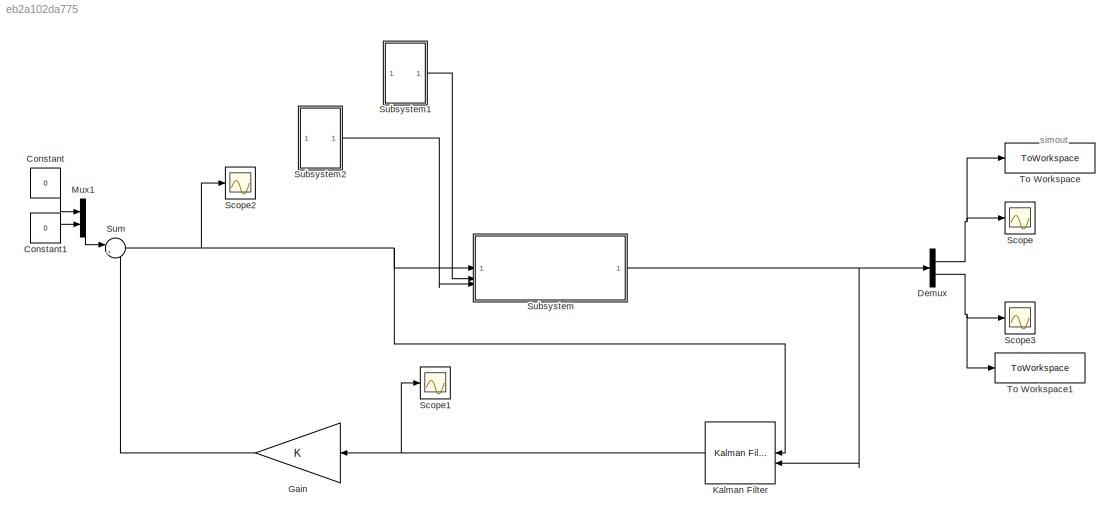
MODEL slx_eb2a102da775
KIND model
CONFIG AbsTol = auto
CONFIG EnableMultiTasking = off
CONFIG FixedStep = auto
CONFIG MaxStep = auto
CONFIG MinStep = auto
CONFIG RelTol = 1e-3
CONFIG SampleTimeConstraint = Unconstrained
CONFIG SolverName = VariableStepAuto
CONFIG StartTime = 0.0
CONFIG StopTime = 60
BLOCK [Constant] Constant
  Value = 0
BLOCK [Constant] Constant1
  Value = 0
BLOCK [Demux] Demux
  Outputs = 2
BLOCK [Gain] Gain
  Gain = K
  Multiplication = Matrix(K*u)
  NameLocation = top
BLOCK [Reference] Kalman Filter  REF=ctrlSharedLib/Kalman Filter
  LibrarySourceBlock = cstblocks/State Estimation/Kalman Filter
  NameLocation = top
  SourceBlock = ctrlSharedLib/Kalman Filter
  SourceType = ctrlKalmanFilter
BLOCK [Mux] Mux1
  DisplayOption = bar
  Inputs = 2
BLOCK [Scope] Scope
  Floating = off
  NumInputPorts = 1
  ScopeSpecificationString = Simulink.scopes.TimeScopeBlockCfg('CurrentConfiguration', extmgr.ConfigurationSet(extmgr.Configuration('Core','General UI',true),extmgr.Configuration('Core','Source UI',true),extmgr.Configuration('Sources','WiredSimulink',true),extmgr.Configuration('Visuals','Time Domain',true,'SerializedDisplays',{struct('MinYLimReal','-0.42464','MaxYLimReal','0.43449','YLabelReal','','MinYLimMag','0.00000','MaxY...<+1433ch>
BLOCK [Scope] Scope1
  Floating = off
  NumInputPorts = 1
  ScopeSpecificationString = Simulink.scopes.TimeScopeBlockCfg('CurrentConfiguration', extmgr.ConfigurationSet(extmgr.Configuration('Core','General UI',true),extmgr.Configuration('Core','Source UI',true),extmgr.Configuration('Sources','WiredSimulink',true,'DataLoggingVariableName','ScopeData1'),extmgr.Configuration('Visuals','Time Domain',true,'SerializedDisplays',{struct('MinYLimReal','-14.36399','MaxYLimReal','13.40943','YL...<+1488ch>
BLOCK [Scope] Scope2
  Floating = off
  NumInputPorts = 1
  ScopeSpecificationString = Simulink.scopes.TimeScopeBlockCfg('CurrentConfiguration', extmgr.ConfigurationSet(extmgr.Configuration('Core','General UI',true),extmgr.Configuration('Core','Source UI',true),extmgr.Configuration('Sources','WiredSimulink',true,'DataLoggingVariableName','ScopeData2'),extmgr.Configuration('Visuals','Time Domain',true,'SerializedDisplays',{struct('MinYLimReal','-2530.75244','MaxYLimReal','2680.49767'...<+1464ch>
BLOCK [Scope] Scope3
  Floating = off
  NumInputPorts = 1
  ScopeSpecificationString = Simulink.scopes.TimeScopeBlockCfg('CurrentConfiguration', extmgr.ConfigurationSet(extmgr.Configuration('Core','General UI',true),extmgr.Configuration('Core','Source UI',true),extmgr.Configuration('Sources','WiredSimulink',true,'DataLoggingVariableName','ScopeData3'),extmgr.Configuration('Visuals','Time Domain',true,'SerializedDisplays',{struct('MinYLimReal','-1.05119','MaxYLimReal','1.07099','YLab...<+1472ch>
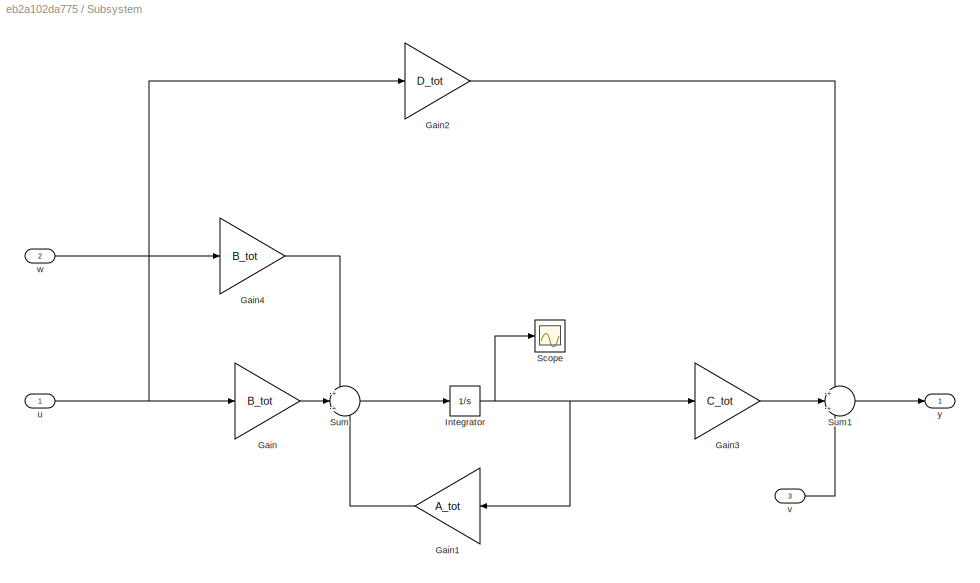
BLOCK [SubSystem] Subsystem
BLOCK [Gain] Subsystem/Gain
  Gain = B_tot
  Multiplication = Matrix(K*u)
BLOCK [Gain] Subsystem/Gain1
  Gain = A_tot
  Multiplication = Matrix(K*u)
  NameLocation = top
BLOCK [Gain] Subsystem/Gain2
  Gain = D_tot
  Multiplication = Matrix(K*u)
BLOCK [Gain] Subsystem/Gain3
  Gain = C_tot
  Multiplication = Matrix(K*u)
BLOCK [Gain] Subsystem/Gain4
  Gain = B_tot
  Multiplication = Matrix(K*u)
BLOCK [Integrator] Subsystem/Integrator
  InitialCondition = [0 0 0 0]
BLOCK [Scope] Subsystem/Scope
  Floating = off
  NumInputPorts = 1
  ScopeSpecificationString = Simulink.scopes.TimeScopeBlockCfg('CurrentConfiguration', extmgr.ConfigurationSet(extmgr.Configuration('Core','General UI',true),extmgr.Configuration('Core','Source UI',true),extmgr.Configuration('Sources','WiredSimulink',true,'DataLoggingVariableName','ScopeData1'),extmgr.Configuration('Visuals','Time Domain',true,'SerializedDisplays',{struct('MinYLimReal','-7.08092','MaxYLimReal','3.21677','YLab...<+1429ch>
BLOCK [Sum] Subsystem/Sum
  Inputs = +|+|+
BLOCK [Sum] Subsystem/Sum1
  Inputs = +|+|+
BLOCK [Inport] Subsystem/u
BLOCK [Inport] Subsystem/v
  Port = 3
BLOCK [Inport] Subsystem/w
  Port = 2
BLOCK [Outport] Subsystem/y
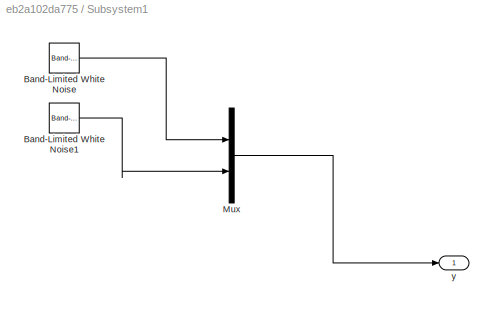
BLOCK [SubSystem] Subsystem1
BLOCK [Reference] Subsystem1/Band-Limited White Noise  REF=simulink/Sources/Band-Limited
White Noise
  SourceBlock = simulink/Sources/Band-Limited\nWhite Noise
  SourceType = Band-Limited White Noise.
BLOCK [Reference] Subsystem1/Band-Limited White Noise1  REF=simulink/Sources/Band-Limited
White Noise
  SourceBlock = simulink/Sources/Band-Limited\nWhite Noise
  SourceType = Band-Limited White Noise.
BLOCK [Mux] Subsystem1/Mux
  DisplayOption = bar
  Inputs = 2
BLOCK [Outport] Subsystem1/y
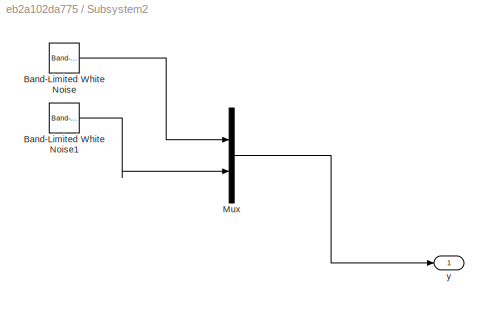
BLOCK [SubSystem] Subsystem2
BLOCK [Reference] Subsystem2/Band-Limited White Noise  REF=simulink/Sources/Band-Limited
White Noise
  SourceBlock = simulink/Sources/Band-Limited\nWhite Noise
  SourceType = Band-Limited White Noise.
BLOCK [Reference] Subsystem2/Band-Limited White Noise1  REF=simulink/Sources/Band-Limited
White Noise
  SourceBlock = simulink/Sources/Band-Limited\nWhite Noise
  SourceType = Band-Limited White Noise.
BLOCK [Mux] Subsystem2/Mux
  DisplayOption = bar
  Inputs = 2
BLOCK [Outport] Subsystem2/y
BLOCK [Sum] Sum
  Inputs = |++
BLOCK [ToWorkspace] To Workspace
  FixptAsFi = on
  MaxDataPoints = inf
  SampleTime = -1
  SaveFormat = Timeseries
  VariableName = phi_LQG_LIN
BLOCK [ToWorkspace] To Workspace1
  FixptAsFi = on
  MaxDataPoints = inf
  SampleTime = -1
  SaveFormat = Timeseries
  VariableName = phi_dot_LQG_LIN
ANNOTATION (root): simout
LINE Constant1:1 -> Mux1:2
LINE Constant:1 -> Mux1:1
NET Demux:1 -> Scope:1, To Workspace:1
NET Demux:2 -> Scope3:1, To Workspace1:1
LINE Gain:1 -> Sum:2
NET Kalman Filter:1 -> Gain:1, Scope1:1
LINE Mux1:1 -> Sum:1
LINE Subsystem/Gain1:1 -> Subsystem/Sum:3
LINE Subsystem/Gain2:1 -> Subsystem/Sum1:1
LINE Subsystem/Gain3:1 -> Subsystem/Sum1:2
LINE Subsystem/Gain4:1 -> Subsystem/Sum:1
LINE Subsystem/Gain:1 -> Subsystem/Sum:2
NET Subsystem/Integrator:1 -> Subsystem/Gain1:1, Subsystem/Gain3:1, Subsystem/Scope:1
LINE Subsystem/Sum1:1 -> Subsystem/y:1
LINE Subsystem/Sum:1 -> Subsystem/Integrator:1
NET Subsystem/u:1 -> Subsystem/Gain2:1, Subsystem/Gain:1
LINE Subsystem/v:1 -> Subsystem/Sum1:3
LINE Subsystem/w:1 -> Subsystem/Gain4:1
LINE Subsystem1/Band-Limited White Noise1:1 -> Subsystem1/Mux:2
LINE Subsystem1/Band-Limited White Noise:1 -> Subsystem1/Mux:1
LINE Subsystem1/Mux:1 -> Subsystem1/y:1
LINE Subsystem1:1 -> Subsystem:2
LINE Subsystem2/Band-Limited White Noise1:1 -> Subsystem2/Mux:2
LINE Subsystem2/Band-Limited White Noise:1 -> Subsystem2/Mux:1
LINE Subsystem2/Mux:1 -> Subsystem2/y:1
LINE Subsystem2:1 -> Subsystem:3
NET Subsystem:1 -> Demux:1, Kalman Filter:2
NET Sum:1 -> Kalman Filter:1, Scope2:1, Subsystem:1
note: NET lines group one-source signal fan-out (src -> all destinations, sorted); 1:1 wires keep LINE
